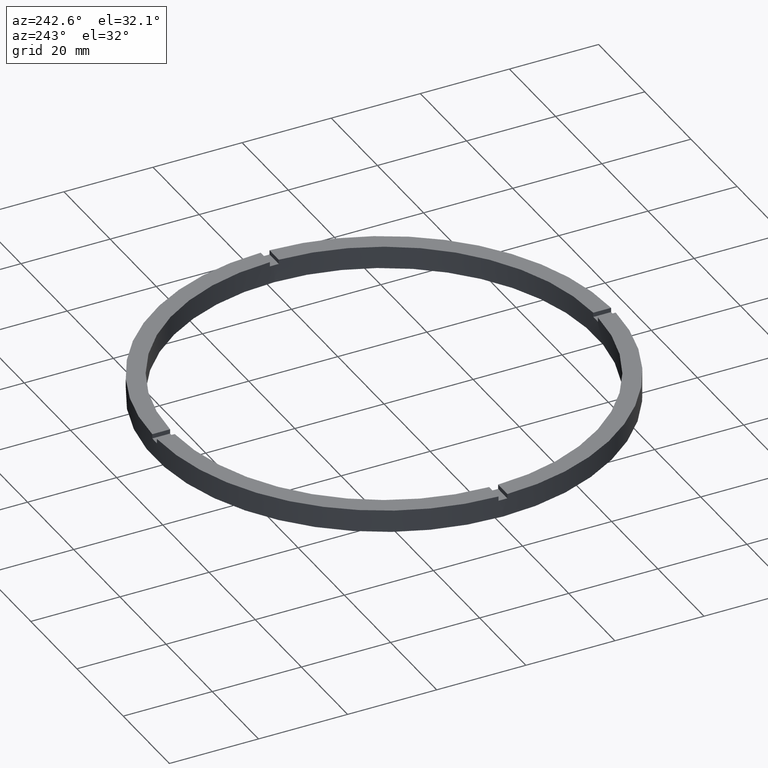
[diagram: clean part render]
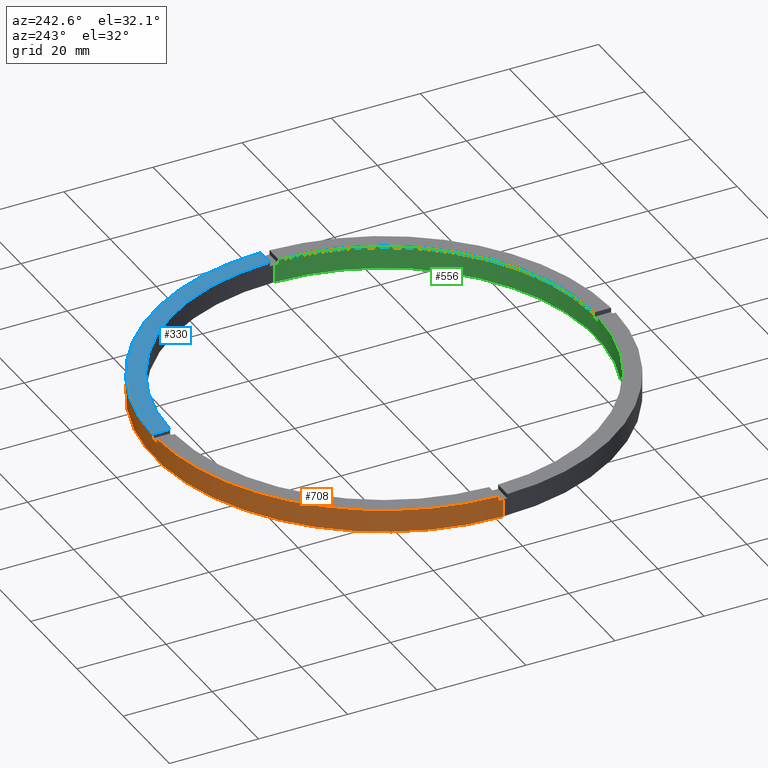
[diagram: same view with three faces highlighted in distinct colors, each labeled with its STEP entity id]
A machine part, auxiliary view with three faces highlighted in distinct colors.
Their STEP definitions:

[orange] entity #708 — the highlighted cylindrical surface (partial cylindrical patch) has radius 51.5 mm, axis along (-0, -0, -1).
#6 = CARTESIAN_POINT ( 'NONE',  ( 0.000000000000000000, 0.000000000000000000, 5.000000000000000000 ) ) ;
#11 = CARTESIAN_POINT ( 'NONE',  ( 0.000000000000000000, 0.000000000000000000, 4.000000000000000000 ) ) ;
#27 = EDGE_CURVE ( 'NONE', #706, #465, #662, .T. ) ;
#33 = AXIS2_PLACEMENT_3D ( 'NONE', #6, #621, #477 ) ;
#34 = DIRECTION ( 'NONE',  ( 1.000000000000000000, 0.000000000000000000, 0.000000000000000000 ) ) ;
#41 = CARTESIAN_POINT ( 'NONE',  ( 0.000000000000000000, 0.000000000000000000, 0.000000000000000000 ) ) ;
#58 = CARTESIAN_POINT ( 'NONE',  ( -51.49029034682169481, 0.9999999999999681366, 5.000000000000000000 ) ) ;
#63 = AXIS2_PLACEMENT_3D ( 'NONE', #41, #278, #331 ) ;
#67 = CARTESIAN_POINT ( 'NONE',  ( 51.49029034682169481, 0.9999999999998452349, 4.000000000000000000 ) ) ;
#71 = EDGE_CURVE ( 'NONE', #372, #430, #728, .T. ) ;
#96 = EDGE_CURVE ( 'NONE', #101, #430, #735, .T. ) ;
#101 = VERTEX_POINT ( 'NONE', #469 ) ;
#107 = ORIENTED_EDGE ( 'NONE', *, *, #340, .T. ) ;
#109 = EDGE_LOOP ( 'NONE', ( #319, #107, #684, #431, #655, #152, #426, #204, #682, #281, #388, #196 ) ) ;
#110 = CARTESIAN_POINT ( 'NONE',  ( 51.49029034682169481, 0.9999999999998452349, 5.000000000000000000 ) ) ;
#145 = CARTESIAN_POINT ( 'NONE',  ( -51.50000000000000000, 0.000000000000000000, 4.000000000000000000 ) ) ;
#150 = CARTESIAN_POINT ( 'NONE',  ( -51.50000000000000000, 0.000000000000000000, 5.000000000000000000 ) ) ;
#152 = ORIENTED_EDGE ( 'NONE', *, *, #284, .T. ) ;
#153 = EDGE_CURVE ( 'NONE', #372, #725, #729, .T. ) ;
#166 = CARTESIAN_POINT ( 'NONE',  ( -51.50000000000000000, 0.000000000000000000, 0.000000000000000000 ) ) ;
#167 = VERTEX_POINT ( 'NONE', #328 ) ;
#185 = LINE ( 'NONE', #399, #197 ) ;
#192 = LINE ( 'NONE', #711, #702 ) ;
#196 = ORIENTED_EDGE ( 'NONE', *, *, #71, .T. ) ;
#197 = VECTOR ( 'NONE', #353, 1000.000000000000000 ) ;
#204 = ORIENTED_EDGE ( 'NONE', *, *, #354, .T. ) ;
#222 = DIRECTION ( 'NONE',  ( 0.000000000000000000, 0.000000000000000000, 1.000000000000000000 ) ) ;
#226 = LINE ( 'NONE', #58, #491 ) ;
#248 = VECTOR ( 'NONE', #540, 1000.000000000000000 ) ;
#256 = CIRCLE ( 'NONE', #401, 51.50000000000000000 ) ;
#278 = DIRECTION ( 'NONE',  ( 0.000000000000000000, 0.000000000000000000, 1.000000000000000000 ) ) ;
#281 = ORIENTED_EDGE ( 'NONE', *, *, #699, .T. ) ;
#284 = EDGE_CURVE ( 'NONE', #167, #690, #226, .T. ) ;
#293 = CARTESIAN_POINT ( 'NONE',  ( 0.000000000000000000, 0.000000000000000000, 5.000000000000000000 ) ) ;
#298 = CARTESIAN_POINT ( 'NONE',  ( 0.9999999999999731326, 51.49029034682169481, 5.000000000000000000 ) ) ;
#308 = DIRECTION ( 'NONE',  ( 0.000000000000000000, -0.000000000000000000, 1.000000000000000000 ) ) ;
#319 = ORIENTED_EDGE ( 'NONE', *, *, #96, .F. ) ;
#328 = CARTESIAN_POINT ( 'NONE',  ( -51.49029034682169481, 0.9999999999999681366, 4.000000000000000000 ) ) ;
#331 = DIRECTION ( 'NONE',  ( 1.000000000000000000, 0.000000000000000000, 0.000000000000000000 ) ) ;
#340 = EDGE_CURVE ( 'NONE', #101, #633, #185, .T. ) ;
#342 = CARTESIAN_POINT ( 'NONE',  ( -1.000000000000026867, 51.49029034682169481, 5.000000000000000000 ) ) ;
#349 = DIRECTION ( 'NONE',  ( 1.000000000000000000, 0.000000000000000000, 0.000000000000000000 ) ) ;
#352 = EDGE_CURVE ( 'NONE', #713, #690, #484, .T. ) ;
#353 = DIRECTION ( 'NONE',  ( -0.000000000000000000, -0.000000000000000000, -1.000000000000000000 ) ) ;
#354 = EDGE_CURVE ( 'NONE', #713, #465, #192, .T. ) ;
#356 = AXIS2_PLACEMENT_3D ( 'NONE', #546, #222, #34 ) ;
#362 = CARTESIAN_POINT ( 'NONE',  ( -1.000000000000026867, 51.49029034682169481, 4.000000000000000000 ) ) ;
#372 = VERTEX_POINT ( 'NONE', #110 ) ;
#378 = DIRECTION ( 'NONE',  ( -0.000000000000000000, -0.000000000000000000, -1.000000000000000000 ) ) ;
#388 = ORIENTED_EDGE ( 'NONE', *, *, #153, .F. ) ;
#399 = CARTESIAN_POINT ( 'NONE',  ( 51.50000000000000000, 6.306931015608868807E-15, 5.000000000000000000 ) ) ;
#401 = AXIS2_PLACEMENT_3D ( 'NONE', #471, #524, #581 ) ;
#420 = DIRECTION ( 'NONE',  ( -0.000000000000000000, -0.000000000000000000, -1.000000000000000000 ) ) ;
#426 = ORIENTED_EDGE ( 'NONE', *, *, #352, .F. ) ;
#430 = VERTEX_POINT ( 'NONE', #67 ) ;
#431 = ORIENTED_EDGE ( 'NONE', *, *, #587, .F. ) ;
#433 = CARTESIAN_POINT ( 'NONE',  ( -51.49029034682169481, 0.9999999999999681366, 5.000000000000000000 ) ) ;
#452 = CARTESIAN_POINT ( 'NONE',  ( 51.49029034682169481, 0.9999999999998452349, 5.000000000000000000 ) ) ;
#459 = AXIS2_PLACEMENT_3D ( 'NONE', #11, #308, #349 ) ;
#465 = VERTEX_POINT ( 'NONE', #362 ) ;
#469 = CARTESIAN_POINT ( 'NONE',  ( 51.50000000000000000, 6.306931015608868807E-15, 4.000000000000000000 ) ) ;
#471 = CARTESIAN_POINT ( 'NONE',  ( 0.000000000000000000, 0.000000000000000000, 4.000000000000000000 ) ) ;
#477 = DIRECTION ( 'NONE',  ( 1.000000000000000000, 0.000000000000000000, 0.000000000000000000 ) ) ;
#479 = CARTESIAN_POINT ( 'NONE',  ( 0.9999999999999731326, 51.49029034682169481, 4.000000000000000000 ) ) ;
#481 = DIRECTION ( 'NONE',  ( 1.000000000000000000, 0.000000000000000000, 0.000000000000000000 ) ) ;
#484 = CIRCLE ( 'NONE', #33, 51.50000000000000000 ) ;
#491 = VECTOR ( 'NONE', #781, 1000.000000000000000 ) ;
#501 = AXIS2_PLACEMENT_3D ( 'NONE', #293, #617, #580 ) ;
#506 = CIRCLE ( 'NONE', #63, 51.50000000000000000 ) ;
#510 = LINE ( 'NONE', #298, #248 ) ;
#524 = DIRECTION ( 'NONE',  ( 0.000000000000000000, 0.000000000000000000, 1.000000000000000000 ) ) ;
#527 = CARTESIAN_POINT ( 'NONE',  ( 0.000000000000000000, 0.000000000000000000, 5.000000000000000000 ) ) ;
#536 = DIRECTION ( 'NONE',  ( 0.000000000000000000, 0.000000000000000000, 1.000000000000000000 ) ) ;
#540 = DIRECTION ( 'NONE',  ( 0.000000000000000000, 0.000000000000000000, 1.000000000000000000 ) ) ;
#546 = CARTESIAN_POINT ( 'NONE',  ( 0.000000000000000000, 0.000000000000000000, 4.000000000000000000 ) ) ;
#578 = DIRECTION ( 'NONE',  ( -0.000000000000000000, -0.000000000000000000, -1.000000000000000000 ) ) ;
#580 = DIRECTION ( 'NONE',  ( -1.000000000000000000, 0.000000000000000000, 0.000000000000000000 ) ) ;
#581 = DIRECTION ( 'NONE',  ( 1.000000000000000000, 0.000000000000000000, 0.000000000000000000 ) ) ;
#587 = EDGE_CURVE ( 'NONE', #675, #671, #760, .T. ) ;
#605 = EDGE_CURVE ( 'NONE', #167, #675, #256, .T. ) ;
#611 = CARTESIAN_POINT ( 'NONE',  ( 0.9999999999999731326, 51.49029034682169481, 5.000000000000000000 ) ) ;
#617 = DIRECTION ( 'NONE',  ( -0.000000000000000000, -0.000000000000000000, -1.000000000000000000 ) ) ;
#621 = DIRECTION ( 'NONE',  ( 0.000000000000000000, 0.000000000000000000, 1.000000000000000000 ) ) ;
#633 = VERTEX_POINT ( 'NONE', #709 ) ;
#655 = ORIENTED_EDGE ( 'NONE', *, *, #605, .F. ) ;
#662 = CIRCLE ( 'NONE', #459, 51.50000000000000000 ) ;
#671 = VERTEX_POINT ( 'NONE', #166 ) ;
#674 = EDGE_CURVE ( 'NONE', #633, #671, #506, .T. ) ;
#675 = VERTEX_POINT ( 'NONE', #145 ) ;
#682 = ORIENTED_EDGE ( 'NONE', *, *, #27, .F. ) ;
#684 = ORIENTED_EDGE ( 'NONE', *, *, #674, .T. ) ;
#687 = AXIS2_PLACEMENT_3D ( 'NONE', #527, #536, #481 ) ;
#690 = VERTEX_POINT ( 'NONE', #433 ) ;
#699 = EDGE_CURVE ( 'NONE', #706, #725, #510, .T. ) ;
#702 = VECTOR ( 'NONE', #420, 1000.000000000000000 ) ;
#706 = VERTEX_POINT ( 'NONE', #479 ) ;
#708 = ADVANCED_FACE ( 'NONE', ( #769 ), #757, .T. ) ;
#709 = CARTESIAN_POINT ( 'NONE',  ( 51.50000000000000000, 6.306931015608868807E-15, 0.000000000000000000 ) ) ;
#711 = CARTESIAN_POINT ( 'NONE',  ( -1.000000000000026867, 51.49029034682169481, 5.000000000000000000 ) ) ;
#713 = VERTEX_POINT ( 'NONE', #342 ) ;
#725 = VERTEX_POINT ( 'NONE', #611 ) ;
#728 = LINE ( 'NONE', #452, #744 ) ;
#729 = CIRCLE ( 'NONE', #687, 51.50000000000000000 ) ;
#735 = CIRCLE ( 'NONE', #356, 51.50000000000000000 ) ;
#744 = VECTOR ( 'NONE', #578, 1000.000000000000000 ) ;
#757 = CYLINDRICAL_SURFACE ( 'NONE', #501, 51.50000000000000000 ) ;
#760 = LINE ( 'NONE', #150, #763 ) ;
#763 = VECTOR ( 'NONE', #378, 1000.000000000000000 ) ;
#769 = FACE_OUTER_BOUND ( 'NONE', #109, .T. ) ;
#781 = DIRECTION ( 'NONE',  ( 0.000000000000000000, 0.000000000000000000, 1.000000000000000000 ) ) ;

[blue] entity #330 — the highlighted planar face has unit normal (0, 0, 1).
#78 = CARTESIAN_POINT ( 'NONE',  ( 0.9999999999999731326, 41.49999999999999289, 5.000000000000000000 ) ) ;
#90 = DIRECTION ( 'NONE',  ( 0.000000000000000000, 0.000000000000000000, 1.000000000000000000 ) ) ;
#110 = CARTESIAN_POINT ( 'NONE',  ( 51.49029034682169481, 0.9999999999998452349, 5.000000000000000000 ) ) ;
#114 = ORIENTED_EDGE ( 'NONE', *, *, #773, .F. ) ;
#118 = VERTEX_POINT ( 'NONE', #618 ) ;
#122 = ORIENTED_EDGE ( 'NONE', *, *, #153, .T. ) ;
#132 = DIRECTION ( 'NONE',  ( 0.000000000000000000, 1.000000000000000000, 0.000000000000000000 ) ) ;
#153 = EDGE_CURVE ( 'NONE', #372, #725, #729, .T. ) ;
#164 = VERTEX_POINT ( 'NONE', #285 ) ;
#180 = EDGE_LOOP ( 'NONE', ( #186, #369, #114, #122 ) ) ;
#186 = ORIENTED_EDGE ( 'NONE', *, *, #490, .F. ) ;
#188 = LINE ( 'NONE', #78, #200 ) ;
#200 = VECTOR ( 'NONE', #132, 1000.000000000000000 ) ;
#238 = CIRCLE ( 'NONE', #289, 47.50000000000000711 ) ;
#250 = LINE ( 'NONE', #382, #772 ) ;
#254 = PLANE ( 'NONE',  #740 ) ;
#285 = CARTESIAN_POINT ( 'NONE',  ( 47.48947251760121446, 0.9999999999998450129, 5.000000000000000000 ) ) ;
#289 = AXIS2_PLACEMENT_3D ( 'NONE', #619, #332, #607 ) ;
#330 = ADVANCED_FACE ( 'NONE', ( #730 ), #254, .T. ) ;
#332 = DIRECTION ( 'NONE',  ( 0.000000000000000000, 0.000000000000000000, 1.000000000000000000 ) ) ;
#369 = ORIENTED_EDGE ( 'NONE', *, *, #598, .F. ) ;
#372 = VERTEX_POINT ( 'NONE', #110 ) ;
#382 = CARTESIAN_POINT ( 'NONE',  ( 41.49999999999998579, 0.9999999999998445688, 5.000000000000000000 ) ) ;
#481 = DIRECTION ( 'NONE',  ( 1.000000000000000000, 0.000000000000000000, 0.000000000000000000 ) ) ;
#489 = DIRECTION ( 'NONE',  ( -1.000000000000000000, -6.505213034913025371E-17, -0.000000000000000000 ) ) ;
#490 = EDGE_CURVE ( 'NONE', #118, #725, #188, .T. ) ;
#527 = CARTESIAN_POINT ( 'NONE',  ( 0.000000000000000000, 0.000000000000000000, 5.000000000000000000 ) ) ;
#536 = DIRECTION ( 'NONE',  ( 0.000000000000000000, 0.000000000000000000, 1.000000000000000000 ) ) ;
#586 = CARTESIAN_POINT ( 'NONE',  ( 0.000000000000000000, 0.000000000000000000, 5.000000000000000000 ) ) ;
#598 = EDGE_CURVE ( 'NONE', #164, #118, #238, .T. ) ;
#607 = DIRECTION ( 'NONE',  ( 1.000000000000000000, 0.000000000000000000, 0.000000000000000000 ) ) ;
#611 = CARTESIAN_POINT ( 'NONE',  ( 0.9999999999999731326, 51.49029034682169481, 5.000000000000000000 ) ) ;
#618 = CARTESIAN_POINT ( 'NONE',  ( 0.9999999999999731326, 47.48947251760120736, 5.000000000000000000 ) ) ;
#619 = CARTESIAN_POINT ( 'NONE',  ( 0.000000000000000000, 0.000000000000000000, 5.000000000000000000 ) ) ;
#626 = DIRECTION ( 'NONE',  ( 1.000000000000000000, 0.000000000000000000, -0.000000000000000000 ) ) ;
#687 = AXIS2_PLACEMENT_3D ( 'NONE', #527, #536, #481 ) ;
#725 = VERTEX_POINT ( 'NONE', #611 ) ;
#729 = CIRCLE ( 'NONE', #687, 51.50000000000000000 ) ;
#730 = FACE_OUTER_BOUND ( 'NONE', #180, .T. ) ;
#740 = AXIS2_PLACEMENT_3D ( 'NONE', #586, #90, #626 ) ;
#772 = VECTOR ( 'NONE', #489, 1000.000000000000000 ) ;
#773 = EDGE_CURVE ( 'NONE', #372, #164, #250, .T. ) ;

[green] entity #556 — the highlighted cylindrical surface (partial cylindrical patch) has radius 47.5 mm, axis along (-0, -0, -1).
#5 = EDGE_CURVE ( 'NONE', #695, #442, #654, .T. ) ;
#17 = EDGE_CURVE ( 'NONE', #560, #695, #400, .T. ) ;
#18 = EDGE_CURVE ( 'NONE', #414, #104, #659, .T. ) ;
#22 = CARTESIAN_POINT ( 'NONE',  ( 47.48947251760120736, -1.000000000000154987, 5.000000000000000000 ) ) ;
#40 = ORIENTED_EDGE ( 'NONE', *, *, #5, .T. ) ;
#42 = ORIENTED_EDGE ( 'NONE', *, *, #394, .T. ) ;
#47 = DIRECTION ( 'NONE',  ( 1.000000000000000000, 0.000000000000000000, 0.000000000000000000 ) ) ;
#53 = EDGE_CURVE ( 'NONE', #413, #181, #411, .T. ) ;
#65 = CARTESIAN_POINT ( 'NONE',  ( 47.50000000000000711, 5.817072295949929004E-15, 0.000000000000000000 ) ) ;
#76 = DIRECTION ( 'NONE',  ( 0.000000000000000000, 0.000000000000000000, 1.000000000000000000 ) ) ;
#80 = EDGE_CURVE ( 'NONE', #162, #155, #462, .T. ) ;
#82 = CARTESIAN_POINT ( 'NONE',  ( 0.000000000000000000, 0.000000000000000000, 5.000000000000000000 ) ) ;
#104 = VERTEX_POINT ( 'NONE', #370 ) ;
#119 = CARTESIAN_POINT ( 'NONE',  ( -47.50000000000000711, 0.000000000000000000, 5.000000000000000000 ) ) ;
#120 = CARTESIAN_POINT ( 'NONE',  ( -47.50000000000000711, 0.000000000000000000, 0.000000000000000000 ) ) ;
#130 = CARTESIAN_POINT ( 'NONE',  ( -1.000000000000156986, -47.48947251760120736, 4.000000000000000000 ) ) ;
#134 = VECTOR ( 'NONE', #660, 1000.000000000000000 ) ;
#141 = ORIENTED_EDGE ( 'NONE', *, *, #680, .T. ) ;
#146 = AXIS2_PLACEMENT_3D ( 'NONE', #694, #76, #294 ) ;
#148 = AXIS2_PLACEMENT_3D ( 'NONE', #756, #320, #528 ) ;
#149 = DIRECTION ( 'NONE',  ( 0.000000000000000000, 0.000000000000000000, 1.000000000000000000 ) ) ;
#151 = ORIENTED_EDGE ( 'NONE', *, *, #451, .F. ) ;
#155 = VERTEX_POINT ( 'NONE', #719 ) ;
#162 = VERTEX_POINT ( 'NONE', #130 ) ;
#175 = ORIENTED_EDGE ( 'NONE', *, *, #567, .F. ) ;
#181 = VERTEX_POINT ( 'NONE', #615 ) ;
#195 = ORIENTED_EDGE ( 'NONE', *, *, #17, .T. ) ;
#202 = ORIENTED_EDGE ( 'NONE', *, *, #53, .T. ) ;
#208 = CARTESIAN_POINT ( 'NONE',  ( -47.48947251760120736, -1.000000000000031308, 5.000000000000000000 ) ) ;
#210 = AXIS2_PLACEMENT_3D ( 'NONE', #377, #470, #260 ) ;
#212 = CARTESIAN_POINT ( 'NONE',  ( 47.50000000000000711, 5.817072295949929004E-15, 4.000000000000000000 ) ) ;
#213 = DIRECTION ( 'NONE',  ( -0.000000000000000000, -0.000000000000000000, -1.000000000000000000 ) ) ;
#228 = CARTESIAN_POINT ( 'NONE',  ( 0.000000000000000000, 0.000000000000000000, 0.000000000000000000 ) ) ;
#233 = VECTOR ( 'NONE', #149, 1000.000000000000000 ) ;
#234 = LINE ( 'NONE', #522, #502 ) ;
#237 = DIRECTION ( 'NONE',  ( 0.000000000000000000, 0.000000000000000000, 1.000000000000000000 ) ) ;
#249 = CARTESIAN_POINT ( 'NONE',  ( 0.000000000000000000, 0.000000000000000000, 4.000000000000000000 ) ) ;
#255 = LINE ( 'NONE', #22, #759 ) ;
#260 = DIRECTION ( 'NONE',  ( 1.000000000000000000, 0.000000000000000000, 0.000000000000000000 ) ) ;
#261 = CIRCLE ( 'NONE', #346, 47.50000000000000711 ) ;
#270 = CIRCLE ( 'NONE', #318, 47.50000000000000711 ) ;
#294 = DIRECTION ( 'NONE',  ( 1.000000000000000000, 0.000000000000000000, 0.000000000000000000 ) ) ;
#318 = AXIS2_PLACEMENT_3D ( 'NONE', #249, #590, #47 ) ;
#320 = DIRECTION ( 'NONE',  ( 0.000000000000000000, 0.000000000000000000, 1.000000000000000000 ) ) ;
#325 = CARTESIAN_POINT ( 'NONE',  ( -1.000000000000156986, -47.48947251760120736, 5.000000000000000000 ) ) ;
#336 = DIRECTION ( 'NONE',  ( 1.000000000000000000, 0.000000000000000000, 0.000000000000000000 ) ) ;
#338 = CARTESIAN_POINT ( 'NONE',  ( 0.000000000000000000, 0.000000000000000000, 4.000000000000000000 ) ) ;
#346 = AXIS2_PLACEMENT_3D ( 'NONE', #228, #770, #336 ) ;
#366 = CARTESIAN_POINT ( 'NONE',  ( 0.9999999999998430145, -47.48947251760121446, 4.000000000000000000 ) ) ;
#370 = CARTESIAN_POINT ( 'NONE',  ( -47.48947251760120736, -1.000000000000031308, 4.000000000000000000 ) ) ;
#371 = DIRECTION ( 'NONE',  ( -0.000000000000000000, -0.000000000000000000, -1.000000000000000000 ) ) ;
#377 = CARTESIAN_POINT ( 'NONE',  ( 0.000000000000000000, 0.000000000000000000, 4.000000000000000000 ) ) ;
#387 = AXIS2_PLACEMENT_3D ( 'NONE', #338, #237, #612 ) ;
#389 = DIRECTION ( 'NONE',  ( -0.000000000000000000, -0.000000000000000000, -1.000000000000000000 ) ) ;
#394 = EDGE_CURVE ( 'NONE', #657, #155, #749, .T. ) ;
#396 = ORIENTED_EDGE ( 'NONE', *, *, #765, .F. ) ;
#400 = CIRCLE ( 'NONE', #387, 47.50000000000000711 ) ;
#407 = ORIENTED_EDGE ( 'NONE', *, *, #80, .F. ) ;
#411 = CIRCLE ( 'NONE', #146, 47.50000000000000711 ) ;
#413 = VERTEX_POINT ( 'NONE', #678 ) ;
#414 = VERTEX_POINT ( 'NONE', #667 ) ;
#427 = ORIENTED_EDGE ( 'NONE', *, *, #18, .T. ) ;
#441 = ORIENTED_EDGE ( 'NONE', *, *, #636, .F. ) ;
#442 = VERTEX_POINT ( 'NONE', #65 ) ;
#451 = EDGE_CURVE ( 'NONE', #414, #624, #739, .T. ) ;
#462 = LINE ( 'NONE', #325, #233 ) ;
#463 = CARTESIAN_POINT ( 'NONE',  ( 47.48947251760120736, -1.000000000000154987, 4.000000000000000000 ) ) ;
#470 = DIRECTION ( 'NONE',  ( 0.000000000000000000, 0.000000000000000000, 1.000000000000000000 ) ) ;
#502 = VECTOR ( 'NONE', #389, 1000.000000000000000 ) ;
#503 = FACE_OUTER_BOUND ( 'NONE', #566, .T. ) ;
#505 = CYLINDRICAL_SURFACE ( 'NONE', #775, 47.50000000000000711 ) ;
#522 = CARTESIAN_POINT ( 'NONE',  ( -47.48947251760120736, -1.000000000000031308, 5.000000000000000000 ) ) ;
#528 = DIRECTION ( 'NONE',  ( 1.000000000000000000, 0.000000000000000000, 0.000000000000000000 ) ) ;
#556 = ADVANCED_FACE ( 'NONE', ( #503 ), #505, .F. ) ;
#560 = VERTEX_POINT ( 'NONE', #463 ) ;
#564 = CARTESIAN_POINT ( 'NONE',  ( 47.50000000000000711, 5.817072295949929004E-15, 5.000000000000000000 ) ) ;
#566 = EDGE_LOOP ( 'NONE', ( #195, #40, #396, #151, #427, #573, #42, #407, #141, #441, #202, #175 ) ) ;
#567 = EDGE_CURVE ( 'NONE', #560, #181, #255, .T. ) ;
#569 = VERTEX_POINT ( 'NONE', #366 ) ;
#573 = ORIENTED_EDGE ( 'NONE', *, *, #750, .F. ) ;
#590 = DIRECTION ( 'NONE',  ( -0.000000000000000000, 0.000000000000000000, 1.000000000000000000 ) ) ;
#612 = DIRECTION ( 'NONE',  ( 1.000000000000000000, 0.000000000000000000, 0.000000000000000000 ) ) ;
#613 = DIRECTION ( 'NONE',  ( -1.000000000000000000, 0.000000000000000000, 0.000000000000000000 ) ) ;
#615 = CARTESIAN_POINT ( 'NONE',  ( 47.48947251760120736, -1.000000000000154987, 5.000000000000000000 ) ) ;
#624 = VERTEX_POINT ( 'NONE', #120 ) ;
#625 = DIRECTION ( 'NONE',  ( -0.000000000000000000, -0.000000000000000000, -1.000000000000000000 ) ) ;
#636 = EDGE_CURVE ( 'NONE', #413, #569, #783, .T. ) ;
#654 = LINE ( 'NONE', #564, #134 ) ;
#657 = VERTEX_POINT ( 'NONE', #208 ) ;
#659 = CIRCLE ( 'NONE', #210, 47.50000000000000711 ) ;
#660 = DIRECTION ( 'NONE',  ( -0.000000000000000000, -0.000000000000000000, -1.000000000000000000 ) ) ;
#667 = CARTESIAN_POINT ( 'NONE',  ( -47.50000000000000711, 0.000000000000000000, 4.000000000000000000 ) ) ;
#668 = DIRECTION ( 'NONE',  ( 0.000000000000000000, 0.000000000000000000, 1.000000000000000000 ) ) ;
#678 = CARTESIAN_POINT ( 'NONE',  ( 0.9999999999998430145, -47.48947251760121446, 5.000000000000000000 ) ) ;
#680 = EDGE_CURVE ( 'NONE', #162, #569, #270, .T. ) ;
#694 = CARTESIAN_POINT ( 'NONE',  ( 0.000000000000000000, 0.000000000000000000, 5.000000000000000000 ) ) ;
#695 = VERTEX_POINT ( 'NONE', #212 ) ;
#719 = CARTESIAN_POINT ( 'NONE',  ( -1.000000000000156986, -47.48947251760120736, 5.000000000000000000 ) ) ;
#720 = VECTOR ( 'NONE', #213, 1000.000000000000000 ) ;
#739 = LINE ( 'NONE', #119, #720 ) ;
#749 = CIRCLE ( 'NONE', #148, 47.50000000000000711 ) ;
#750 = EDGE_CURVE ( 'NONE', #657, #104, #234, .T. ) ;
#756 = CARTESIAN_POINT ( 'NONE',  ( 0.000000000000000000, 0.000000000000000000, 5.000000000000000000 ) ) ;
#759 = VECTOR ( 'NONE', #668, 1000.000000000000000 ) ;
#765 = EDGE_CURVE ( 'NONE', #624, #442, #261, .T. ) ;
#767 = VECTOR ( 'NONE', #625, 1000.000000000000000 ) ;
#770 = DIRECTION ( 'NONE',  ( 0.000000000000000000, 0.000000000000000000, 1.000000000000000000 ) ) ;
#775 = AXIS2_PLACEMENT_3D ( 'NONE', #82, #371, #613 ) ;
#780 = CARTESIAN_POINT ( 'NONE',  ( 0.9999999999998430145, -47.48947251760121446, 5.000000000000000000 ) ) ;
#783 = LINE ( 'NONE', #780, #767 ) ;